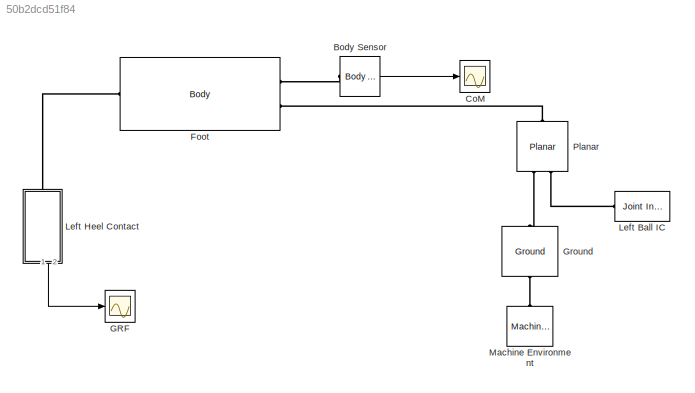
MODEL slx_50b2dcd51f84
KIND model
BLOCK [Reference] Body Sensor  REF=mblibv1/Sensors & 
Actuators/Body Sensor
  Acceleration = off
  AccelerationUnits = m/s^2
  ActiveIO = on
  Angle = on
  AngleUnits = deg
  ArcAcceleration = off
  ArcAccelerationUnits = deg/s^2
  ArcVelocity = off
  ArcVelocityUnits = deg/s
  ClassName = BodySensor
  CoordPosition = on
  CoordPositionUnits = m
  DialogClass = MechanicalSensorBlock
  Muxed = on
  OutputVector = [1]
  PhysicalDomain = Mechanical
  PortType = blob
  Ports = [0, 1, 0, 0, 0, 1]
  Pose = off
  Quaternion = on
  QuaternionDDT = off
  QuaternionDT = off
  QuaternionUnits = off
  ReferenceFrame = Absolute (World)
  SourceBlock = mblibv1/Sensors & \nActuators/Body Sensor
  SourceType = Body Sensor
  UpdateFromCAD = off
  Velocity = off
  VelocityUnits = m/s
  Width = 3
BLOCK [Scope] CoM
  Floating = off
  NumInputPorts = 1
  Ports = [1]
  SaveName = ScopeData1
  ShowLegends = off
BLOCK [Reference] Foot  REF=mblibv1/Bodies/Body
  AttachedToCS = CG
  BodyColor = [1 0 0]
  BodyColorSelMode = MACHINE_DEFAULT
  CG = Left$CG$[0 0 0]$CS1$CS1$m$[0 0 0]$Euler X-Y-Z$deg$WORLD$true$none
  CGPos = [0 0 0]
  CGRot = [0 0 0]
  CS0Pos = []
  CS0Rot = []
  CS10Pos = []
  CS10Rot = []
  CS11Pos = []
  CS11Rot = []
  CS12Pos = []
  CS12Rot = []
  CS13Pos = []
  CS13Rot = []
  CS14Pos = []
  CS14Rot = []
  CS15Pos = []
  CS15Rot = []
  CS16Pos = []
  CS16Rot = []
  CS17Pos = []
  CS17Rot = []
  CS18Pos = []
  CS18Rot = []
  CS19Pos = []
  CS19Rot = []
  CS1Pos = [0 0 0]
  CS1Rot = [0 0 0]
  CS20Pos = []
  CS20Rot = []
  CS2Pos = [0 0 0]
  CS2Rot = [0 0 0]
  CS3Pos = []
  CS3Rot = []
  CS4Pos = []
  CS4Rot = []
  CS5Pos = []
  CS5Rot = []
  CS6Pos = []
  CS6Rot = []
  CS7Pos = []
  CS7Rot = []
  CS8Pos = []
  CS8Rot = []
  CS9Pos = []
  CS9Rot = []
  ClassName = Body
  Density = 1
  DensityUnits = kg/m^3
  DensityUse = false
  DialogClass = MechanicalBodyBlock
  GraphicsMode = MACHINE_DEFAULT
  Inertia = [0 0 0; 0 0 0; 0 0 1]
  InertiaUnits = kg*m^2
  LConnTagsString = CG|CS1
  Mass = 1
  MassUnits = kg
  Ports = [0, 0, 0, 0, 0, 2, 1]
  RConnTagsString = CS2
  Shape = Cylinder
  ShapeDims = [1 1]
  ShapeUnits = m
  ShapeUse = false
  SourceBlock = mblibv1/Bodies/Body
  SourceType = Body
  UpdateFromCAD = off
  WorkingFrames = Left$CS1$[0 0 0]$ADJOINING$ADJOINING$m$[0 0 0]$Euler X-Y-Z$deg$WORLD$true$none#Right$CS2$[0 0 0]$CS1$CS1$m$[0 0 0]$Euler X-Y-Z$deg$WORLD$true$none
BLOCK [Scope] GRF
  Floating = off
  NumInputPorts = 1
  Ports = [1]
  ShowLegends = off
  ZoomMode = yonly
BLOCK [Reference] Ground  REF=mblibv1/Bodies/Ground
  ClassName = Ground
  CoordPosition = [0 0 0]
  CoordPositionUnits = m
  DialogClass = GroundBlock
  LeftPortType = env
  MachineId = [1 0]
  ParameterChecksum = [171950116, 4110428380, 191382114, 3598789503]
  PhysicalDomain = Mechanical
  Ports = [0, 0, 0, 0, 0, 1, 1]
  RightPortType = workingframe
  ShowEnvPort = on
  SourceBlock = mblibv1/Bodies/Ground
  SourceType = Ground
  StateVectorMgrId = 0
  TopologyChecksum = [3411928972, 2060642309, 880269519, 1718383124]
  UpdateFromCAD = off
  UserDataPersistent = on
BLOCK [Reference] Left Ball IC  REF=mblibv1/Sensors & 
Actuators/Joint Initial Condition
  ClassName = InitialCondition
  DialogClass = InitialConditionBlock
  InitialConditions = P1$true$0$m$rad$1$m/s$rad/s#P2$true$1$m$rad$0$m/s$rad/s#P3$false$0$m$rad$0$m/s$rad/s#R1$false$0$m$rad$0$m/s$rad/s#R2$false$0$m$rad$0$m/s$rad/s#R3$false$0$m$rad$0$m/s$rad/s#S$false$0$m$rad$0$m/s$rad/s
  LeftPortType = blob
  P1PIC = 0
  P1VIC = 1
  P2PIC = 1
  P2VIC = 0
  P3PIC = 0
  P3VIC = 0
  PhysicalDomain = Mechanical
  Ports = [0, 0, 0, 0, 0, 0, 1]
  R1PIC = 0
  R1VIC = 0
  R2PIC = 0
  R2VIC = 0
  R3PIC = 0
  R3VIC = 0
  RightPortType = blob
  SPIC = 0
  SVIC = 0
  SourceBlock = mblibv1/Sensors & \nActuators/Joint Initial Condition
  SourceType = Joint Initial Condition
  UpdateFromCAD = off
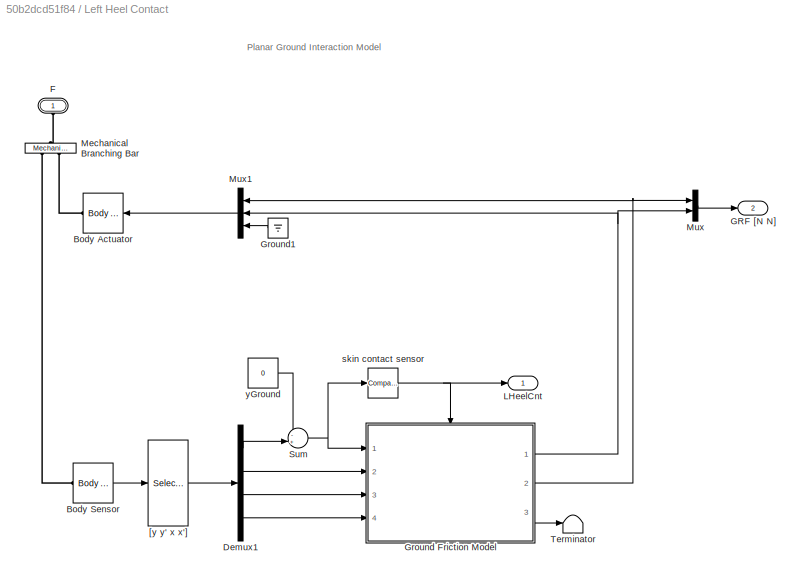
BLOCK [SubSystem] Left Heel Contact
  Ports = [0, 2, 0, 0, 0, 1]
  RequestExecContextInheritance = off
BLOCK [Reference] Left Heel Contact/Body Actuator  REF=mblibv1/Sensors & 
Actuators/Body Actuator
  AccelerationUnits = m/s^2
  ActiveIO = on
  ActuationStyle = Force
  Angle = off
  AngleUnits = deg
  ArcAccelerationUnits = deg/s^2
  ArcVelocityUnits = deg/s
  ClassName = BodyActuatorForceTorque
  CoordPosition = on
  CoordPositionUnits = m
  DialogClass = MechanicalActuatorBlock
  Force = on
  ForceUnits = N
  PhysicalDomain = Mechanical
  PortType = blob
  Ports = [1, 0, 0, 0, 0, 0, 1]
  ReferenceFrame = Absolute (World)
  SourceBlock = mblibv1/Sensors & \nActuators/Body Actuator
  SourceType = Body Actuator
  Torque = off
  TorqueUnits = N-m
  UpdateFromCAD = off
  VelocityUnits = m/s
  Width = 3
BLOCK [Reference] Left Heel Contact/Body Sensor  REF=mblibv1/Sensors & 
Actuators/Body Sensor
  Acceleration = off
  AccelerationUnits = m/s^2
  ActiveIO = on
  Angle = on
  AngleUnits = deg
  ArcAcceleration = off
  ArcAccelerationUnits = deg/s^2
  ArcVelocity = off
  ArcVelocityUnits = deg/s
  ClassName = BodySensor
  CoordPosition = on
  CoordPositionUnits = m
  DialogClass = MechanicalSensorBlock
  Muxed = on
  OutputVector = [ 3 3 ]
  PhysicalDomain = Mechanical
  PortType = blob
  Ports = [0, 1, 0, 0, 0, 1]
  Pose = off
  Quaternion = on
  QuaternionDDT = off
  QuaternionDT = off
  QuaternionUnits = off
  ReferenceFrame = Absolute (World)
  SourceBlock = mblibv1/Sensors & \nActuators/Body Sensor
  SourceType = Body Sensor
  UpdateFromCAD = off
  Velocity = on
  VelocityUnits = m/s
  Width = 6
BLOCK [Demux] Left Heel Contact/Demux1
  DisplayOption = bar
  Ports = [1, 4]
BLOCK [PMIOPort] Left Heel Contact/F
  Port = 1
  Side = Left
BLOCK [Outport] Left Heel Contact/GRF [N N]
  IconDisplay = Port number
  Port = 2
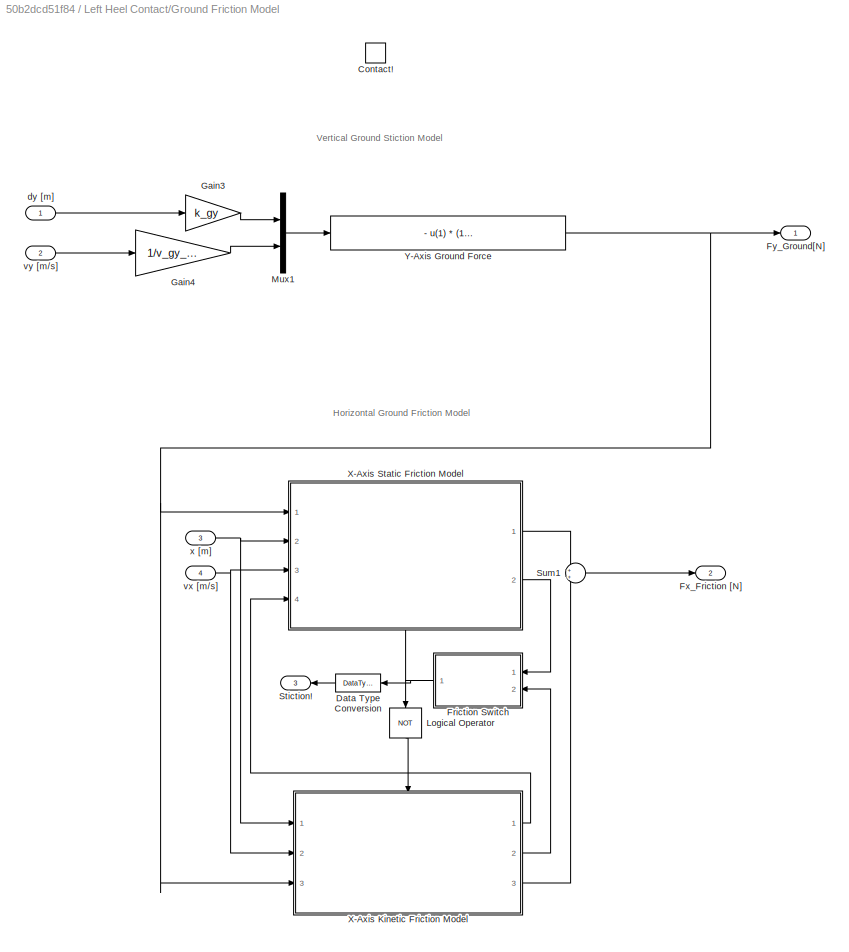
BLOCK [SubSystem] Left Heel Contact/Ground Friction Model
  Ports = [4, 3, 1]
  RequestExecContextInheritance = off
BLOCK [EnablePort] Left Heel Contact/Ground Friction Model/Contact!
  Ports = []
  StatesWhenEnabling = reset
BLOCK [DataTypeConversion] Left Heel Contact/Ground Friction Model/Data Type Conversion
  OutDataTypeStr = double
  RndMeth = Floor
  SaturateOnIntegerOverflow = off
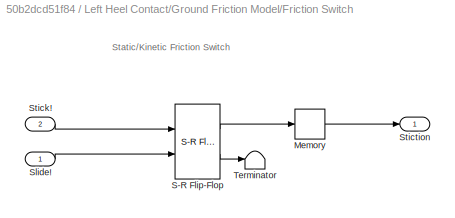
BLOCK [SubSystem] Left Heel Contact/Ground Friction Model/Friction Switch
  Ports = [2, 1]
  RequestExecContextInheritance = off
BLOCK [Memory] Left Heel Contact/Ground Friction Model/Friction Switch/Memory
BLOCK [Reference] Left Heel Contact/Ground Friction Model/Friction Switch/S-R Flip-Flop  REF=simulink_extras/Flip Flops/S-R
Flip-Flop
  Ports = [2, 2]
  SourceBlock = simulink_extras/Flip Flops/S-R\nFlip-Flop
  SourceType = SRFlipFlop
  initial_condition = 1
BLOCK [Inport] Left Heel Contact/Ground Friction Model/Friction Switch/Slide!
  IconDisplay = Port number
BLOCK [Inport] Left Heel Contact/Ground Friction Model/Friction Switch/Stick!
  IconDisplay = Port number
  Port = 2
BLOCK [Outport] Left Heel Contact/Ground Friction Model/Friction Switch/Stiction
  IconDisplay = Port number
BLOCK [Terminator] Left Heel Contact/Ground Friction Model/Friction Switch/Terminator
BLOCK [Outport] Left Heel Contact/Ground Friction Model/Fx_Friction [N]
  AttributesFormatString = initial = '%<InitialOutput>'\nwhen\ndisabled\n'%<OutputWhenDisabled>'
  IconDisplay = Port number
  InitialOutput = 0
  OutputWhenDisabled = reset
  Port = 2
BLOCK [Outport] Left Heel Contact/Ground Friction Model/Fy_Ground[N]
  AttributesFormatString = initial = '%<InitialOutput>'\nwhen disabled = '%<OutputWhenDisabled>'
  IconDisplay = Port number
  InitialOutput = 0
  OutputWhenDisabled = reset
BLOCK [Gain] Left Heel Contact/Ground Friction Model/Gain3
  Gain = k_gy
  OutDataTypeStr = Inherit: Inherit via internal rule
  ParamDataTypeStr = Inherit: Inherit via internal rule
  SaturateOnIntegerOverflow = off
BLOCK [Gain] Left Heel Contact/Ground Friction Model/Gain4
  Gain = 1/v_gy_max
  OutDataTypeStr = Inherit: Inherit via internal rule
  ParamDataTypeStr = Inherit: Inherit via internal rule
  SaturateOnIntegerOverflow = off
BLOCK [Logic] Left Heel Contact/Ground Friction Model/Logical Operator
  AllPortsSameDT = off
  Operator = NOT
  OutDataTypeStr = boolean
  Ports = [1, 1]
BLOCK [Mux] Left Heel Contact/Ground Friction Model/Mux1
  DisplayOption = bar
  Inputs = 2
  Ports = [2, 1]
BLOCK [Outport] Left Heel Contact/Ground Friction Model/Stiction!
  AttributesFormatString = initial = '%<InitialOutput>'\nwhen\ndisabled\n'%<OutputWhenDisabled>'
  IconDisplay = Port number
  InitialOutput = 0
  OutputWhenDisabled = reset
  Port = 3
BLOCK [Sum] Left Heel Contact/Ground Friction Model/Sum1
  IconShape = round
  InputSameDT = off
  OutDataTypeStr = Inherit: Inherit via internal rule
  Ports = [2, 1]
  SaturateOnIntegerOverflow = off
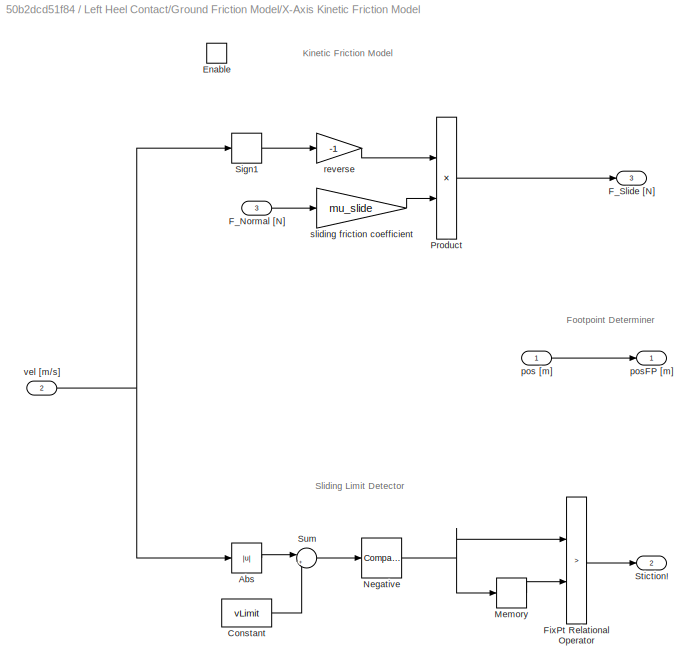
BLOCK [SubSystem] Left Heel Contact/Ground Friction Model/X-Axis Kinetic Friction Model
  Ports = [3, 3, 1]
  RequestExecContextInheritance = off
BLOCK [Abs] Left Heel Contact/Ground Friction Model/X-Axis Kinetic Friction Model/Abs
  SaturateOnIntegerOverflow = off
BLOCK [Constant] Left Heel Contact/Ground Friction Model/X-Axis Kinetic Friction Model/Constant
  Value = vLimit
BLOCK [EnablePort] Left Heel Contact/Ground Friction Model/X-Axis Kinetic Friction Model/Enable
  Ports = []
  StatesWhenEnabling = reset
  ZeroCross = off
BLOCK [Inport] Left Heel Contact/Ground Friction Model/X-Axis Kinetic Friction Model/F_Normal [N]
  IconDisplay = Port number
  Port = 3
BLOCK [Outport] Left Heel Contact/Ground Friction Model/X-Axis Kinetic Friction Model/F_Slide [N]
  AttributesFormatString = initial = '%<InitialOutput>'\nwhen disabled = '%<OutputWhenDisabled>'
  IconDisplay = Port number
  InitialOutput = 0
  OutputWhenDisabled = reset
  Port = 3
BLOCK [RelationalOperator] Left Heel Contact/Ground Friction Model/X-Axis Kinetic Friction Model/FixPt Relational Operator
  InputSameDT = off
  Operator = >
  OutDataTypeStr = boolean
  Ports = [2, 1]
  ZeroCross = off
BLOCK [Memory] Left Heel Contact/Ground Friction Model/X-Axis Kinetic Friction Model/Memory
BLOCK [Reference] Left Heel Contact/Ground Friction Model/X-Axis Kinetic Friction Model/Negative  REF=simulink/Logic and Bit
Operations/Compare
To Zero
  OutDataTypeStr = boolean
  Ports = [1, 1]
  SourceBlock = simulink/Logic and Bit\nOperations/Compare\nTo Zero
  SourceType = Compare To Zero
  ZeroCross = on
  relop = <
BLOCK [Product] Left Heel Contact/Ground Friction Model/X-Axis Kinetic Friction Model/Product
  InputSameDT = off
  OutDataTypeStr = Inherit: Inherit via internal rule
  Ports = [2, 1]
  SaturateOnIntegerOverflow = off
BLOCK [Signum] Left Heel Contact/Ground Friction Model/X-Axis Kinetic Friction Model/Sign1
BLOCK [Outport] Left Heel Contact/Ground Friction Model/X-Axis Kinetic Friction Model/Stiction!
  AttributesFormatString = initial = '%<InitialOutput>'\nwhen disabled = '%<OutputWhenDisabled>'
  IconDisplay = Port number
  InitialOutput = 0
  OutputWhenDisabled = reset
  Port = 2
BLOCK [Sum] Left Heel Contact/Ground Friction Model/X-Axis Kinetic Friction Model/Sum
  IconShape = round
  InputSameDT = off
  Inputs = |+-
  OutDataTypeStr = Inherit: Inherit via internal rule
  Ports = [2, 1]
  SaturateOnIntegerOverflow = off
BLOCK [Inport] Left Heel Contact/Ground Friction Model/X-Axis Kinetic Friction Model/pos [m]
  IconDisplay = Port number
BLOCK [Outport] Left Heel Contact/Ground Friction Model/X-Axis Kinetic Friction Model/posFP [m]
  AttributesFormatString = initial = '%<InitialOutput>'\nwhen disabled = '%<OutputWhenDisabled>'
  IconDisplay = Port number
  InitialOutput = 0
BLOCK [Gain] Left Heel Contact/Ground Friction Model/X-Axis Kinetic Friction Model/reverse
  Gain = -1
  OutDataTypeStr = Inherit: Inherit via internal rule
  ParamDataTypeStr = Inherit: Inherit via internal rule
  SaturateOnIntegerOverflow = off
BLOCK [Gain] Left Heel Contact/Ground Friction Model/X-Axis Kinetic Friction Model/sliding friction coefficient
  Gain = mu_slide
  OutDataTypeStr = Inherit: Inherit via internal rule
  ParamDataTypeStr = Inherit: Inherit via internal rule
  SaturateOnIntegerOverflow = off
BLOCK [Inport] Left Heel Contact/Ground Friction Model/X-Axis Kinetic Friction Model/vel [m//s]
  IconDisplay = Port number
  Port = 2
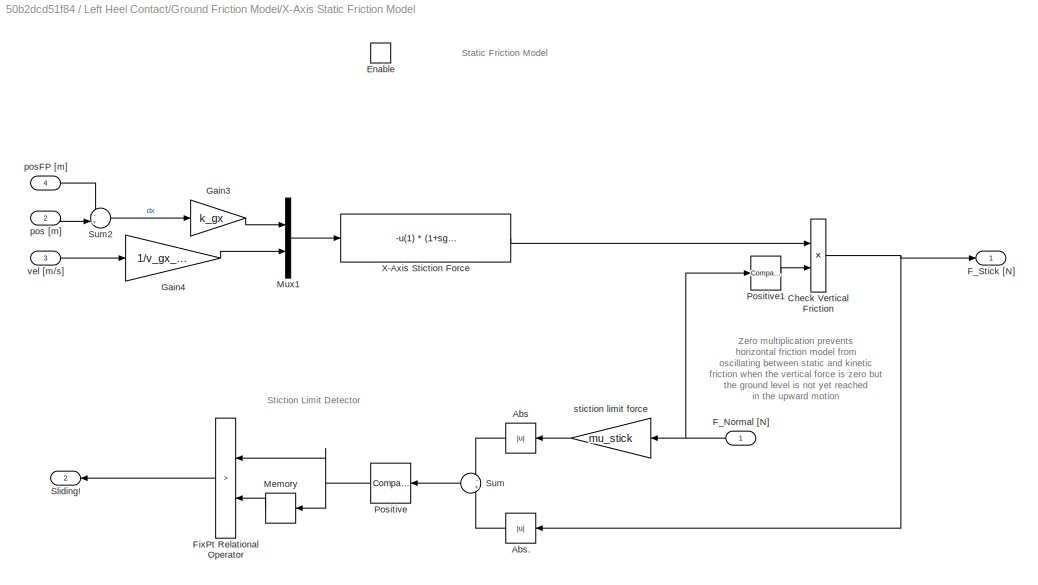
BLOCK [SubSystem] Left Heel Contact/Ground Friction Model/X-Axis Static Friction Model
  Ports = [4, 2, 1]
  RequestExecContextInheritance = off
BLOCK [Abs] Left Heel Contact/Ground Friction Model/X-Axis Static Friction Model/Abs
  SaturateOnIntegerOverflow = off
BLOCK [Abs] Left Heel Contact/Ground Friction Model/X-Axis Static Friction Model/Abs.
  SaturateOnIntegerOverflow = off
BLOCK [Product] Left Heel Contact/Ground Friction Model/X-Axis Static Friction Model/Check Vertical Friction
  InputSameDT = off
  OutDataTypeStr = Inherit: Inherit via internal rule
  Ports = [2, 1]
  SaturateOnIntegerOverflow = off
BLOCK [EnablePort] Left Heel Contact/Ground Friction Model/X-Axis Static Friction Model/Enable
  Ports = []
  StatesWhenEnabling = reset
  ZeroCross = off
BLOCK [Inport] Left Heel Contact/Ground Friction Model/X-Axis Static Friction Model/F_Normal [N]
  IconDisplay = Port number
BLOCK [Outport] Left Heel Contact/Ground Friction Model/X-Axis Static Friction Model/F_Stick [N]
  AttributesFormatString = when disabled: %<OutputWhenDisabled>\ninitial: %<InitialOutput>
  IconDisplay = Port number
  InitialOutput = 0
  OutputWhenDisabled = reset
BLOCK [RelationalOperator] Left Heel Contact/Ground Friction Model/X-Axis Static Friction Model/FixPt Relational Operator
  InputSameDT = off
  Operator = >
  OutDataTypeStr = boolean
  Ports = [2, 1]
  ZeroCross = off
BLOCK [Gain] Left Heel Contact/Ground Friction Model/X-Axis Static Friction Model/Gain3
  Gain = k_gx
  OutDataTypeStr = Inherit: Inherit via internal rule
  ParamDataTypeStr = Inherit: Inherit via internal rule
  SaturateOnIntegerOverflow = off
BLOCK [Gain] Left Heel Contact/Ground Friction Model/X-Axis Static Friction Model/Gain4
  Gain = 1/v_gx_max
  OutDataTypeStr = Inherit: Inherit via internal rule
  ParamDataTypeStr = Inherit: Inherit via internal rule
  SaturateOnIntegerOverflow = off
BLOCK [Memory] Left Heel Contact/Ground Friction Model/X-Axis Static Friction Model/Memory
BLOCK [Mux] Left Heel Contact/Ground Friction Model/X-Axis Static Friction Model/Mux1
  DisplayOption = bar
  Inputs = 2
  Ports = [2, 1]
BLOCK [Reference] Left Heel Contact/Ground Friction Model/X-Axis Static Friction Model/Positive  REF=simulink/Logic and Bit
Operations/Compare
To Zero
  OutDataTypeStr = boolean
  Ports = [1, 1]
  SourceBlock = simulink/Logic and Bit\nOperations/Compare\nTo Zero
  SourceType = Compare To Zero
  ZeroCross = on
  relop = >
BLOCK [Reference] Left Heel Contact/Ground Friction Model/X-Axis Static Friction Model/Positive1  REF=simulink/Logic and Bit
Operations/Compare
To Zero
  OutDataTypeStr = boolean
  Ports = [1, 1]
  SourceBlock = simulink/Logic and Bit\nOperations/Compare\nTo Zero
  SourceType = Compare To Zero
  ZeroCross = on
  relop = >
BLOCK [Outport] Left Heel Contact/Ground Friction Model/X-Axis Static Friction Model/Sliding!
  AttributesFormatString = when disabled: %<OutputWhenDisabled>\ninitial: %<InitialOutput>
  IconDisplay = Port number
  InitialOutput = 0
  OutputWhenDisabled = reset
  Port = 2
BLOCK [Sum] Left Heel Contact/Ground Friction Model/X-Axis Static Friction Model/Sum
  IconShape = round
  InputSameDT = off
  Inputs = -+
  OutDataTypeStr = Inherit: Inherit via internal rule
  Ports = [2, 1]
  SaturateOnIntegerOverflow = off
BLOCK [Sum] Left Heel Contact/Ground Friction Model/X-Axis Static Friction Model/Sum2
  IconShape = round
  InputSameDT = off
  Inputs = -+|
  OutDataTypeStr = Inherit: Inherit via internal rule
  Ports = [2, 1]
  SaturateOnIntegerOverflow = off
BLOCK [Fcn] Left Heel Contact/Ground Friction Model/X-Axis Static Friction Model/X-Axis Stiction Force
  Expr = -u(1) * (1+sgn(u(1))*u(2))
BLOCK [Inport] Left Heel Contact/Ground Friction Model/X-Axis Static Friction Model/pos [m]
  IconDisplay = Port number
  Port = 2
BLOCK [Inport] Left Heel Contact/Ground Friction Model/X-Axis Static Friction Model/posFP [m]
  IconDisplay = Port number
  Port = 4
BLOCK [Gain] Left Heel Contact/Ground Friction Model/X-Axis Static Friction Model/stiction limit force
  Gain = mu_stick
  OutDataTypeStr = Inherit: Inherit via internal rule
  ParamDataTypeStr = Inherit: Inherit via internal rule
  SaturateOnIntegerOverflow = off
BLOCK [Inport] Left Heel Contact/Ground Friction Model/X-Axis Static Friction Model/vel [m//s]
  IconDisplay = Port number
  Port = 3
BLOCK [Fcn] Left Heel Contact/Ground Friction Model/Y-Axis Ground Force
  Expr = - u(1)  *  (1-u(2)) * (u(2)<1)
BLOCK [Inport] Left Heel Contact/Ground Friction Model/dy [m]
  IconDisplay = Port number
BLOCK [Inport] Left Heel Contact/Ground Friction Model/vx [m//s]
  IconDisplay = Port number
  Port = 4
BLOCK [Inport] Left Heel Contact/Ground Friction Model/vy [m//s]
  IconDisplay = Port number
  Port = 2
BLOCK [Inport] Left Heel Contact/Ground Friction Model/x [m]
  IconDisplay = Port number
  Port = 3
BLOCK [Ground] Left Heel Contact/Ground1
BLOCK [Outport] Left Heel Contact/LHeelCnt
  IconDisplay = Port number
BLOCK [Reference] Left Heel Contact/Mechanical Branching Bar  REF=mblibv1/Utilities/Mechanical
Branching
Bar
  ClassName = BranchingBar
  DialogClass = MechanicalBranchingBarBlock
  LConnTagsString = _newl0
  NumSAPorts = 2
  Ports = [0, 0, 0, 0, 0, 1, 2]
  RConnTagsString = SA0|SA1
  SourceBlock = mblibv1/Utilities/Mechanical\nBranching\nBar
  SourceType = Mechanical Branching Bar
  UpdateFromCAD = off
BLOCK [Mux] Left Heel Contact/Mux
  DisplayOption = bar
  Inputs = 2
  Ports = [2, 1]
BLOCK [Mux] Left Heel Contact/Mux1
  DisplayOption = bar
  Inputs = 3
  Ports = [3, 1]
BLOCK [Sum] Left Heel Contact/Sum
  IconShape = round
  InputSameDT = off
  Inputs = -+|
  OutDataTypeStr = Inherit: Inherit via internal rule
  Ports = [2, 1]
  SaturateOnIntegerOverflow = off
BLOCK [Terminator] Left Heel Contact/Terminator
BLOCK [Selector] Left Heel Contact/[y y' x x']
  Indices = [2 5 1 4]
  InputPortWidth = 6
  Ports = [1, 1]
BLOCK [Reference] Left Heel Contact/skin contact sensor  REF=simulink/Logic and Bit
Operations/Compare
To Zero
  OutDataTypeStr = boolean
  Ports = [1, 1]
  SourceBlock = simulink/Logic and Bit\nOperations/Compare\nTo Zero
  SourceType = Compare To Zero
  ZeroCross = on
  relop = <=
BLOCK [Constant] Left Heel Contact/yGround
  Value = 0
BLOCK [Reference] Machine Environment  REF=mblibv1/Bodies/Machine
Environment
  AnalysisType = Forward dynamics
  AngularAssemblyTolerance = 1e-3
  AngularAssemblyToleranceUnits = rad
  BodyColorSelMode = Use model default
  BodyVisualizationType = Use model default body geometries
  ClassName = Environment
  ConstraintAbsTolerance = 1e-3
  ConstraintRelTolerance = 1e-3
  ConstraintSolverType = Tolerancing
  DefaultBodyColor = [1 0 0]
  DialogTemplateClass = MECH.MachineEnvironment
  Dimensionality = 2D Only
  Gravity = [0 -9.81 0]
  GravityAsSignal = off
  GravityUnits = m/s^2
  LinearAssemblyTolerance = 1e-3
  LinearAssemblyToleranceUnits = m
  PerturbationSize = 1e-3
  PhysicalDomain = Mechanical
  PortType = env
  Ports = [0, 0, 0, 0, 0, 0, 1]
  RedundancyAnalysisTolerance = 1e-14
  RedundancyAnalysisToleranceType = Automatically select tolerance
  SourceBlock = mblibv1/Bodies/Machine\nEnvironment
  SourceType = Machine Environment
  StatePerturbationType = Fixed
  SyncWhenCopied = off
  Tag = Factory ground
  UseRobustSingularityHandling = off
  VisualizeMachine = on
BLOCK [Reference] Planar  REF=mblibv1/Joints/Planar
  ClassName = PlanarJoint
  CutJoint = off
  DialogClass = JointBlock
  LConnTagsString = __newl0|SA1
  MarkAsCut = off
  NumSAPorts = 1
  P1Axis = [1 0 0]
  P2Axis = [0 1 0]
  Ports = [0, 0, 0, 0, 0, 2, 1]
  PrimitiveProps = P1$WORLD$[1 0 0]$prismatic#P2$WORLD$[0 1 0]$prismatic#R1$WORLD$[0 0 1]$revolute
  Primitives = prismatic_prismatic_revolute
  R1Axis = [0 0 1]
  RConnTagsString = __newr0
  SourceBlock = mblibv1/Joints/Planar
  SourceType = Planar
  UpdateFromCAD = off
ANNOTATION Left Heel Contact: Planar Ground Interaction Model
ANNOTATION Left Heel Contact/Ground Friction Model: Horizontal Ground Friction Model
ANNOTATION Left Heel Contact/Ground Friction Model: Vertical Ground Stiction Model
ANNOTATION Left Heel Contact/Ground Friction Model/Friction Switch: Static/Kinetic Friction Switch
ANNOTATION Left Heel Contact/Ground Friction Model/X-Axis Kinetic Friction Model: Footpoint Determiner
ANNOTATION Left Heel Contact/Ground Friction Model/X-Axis Kinetic Friction Model: Kinetic Friction Model
ANNOTATION Left Heel Contact/Ground Friction Model/X-Axis Kinetic Friction Model: Sliding Limit Detector
ANNOTATION Left Heel Contact/Ground Friction Model/X-Axis Static Friction Model: Static Friction Model
ANNOTATION Left Heel Contact/Ground Friction Model/X-Axis Static Friction Model: Stiction Limit Detector
ANNOTATION Left Heel Contact/Ground Friction Model/X-Axis Static Friction Model: Zero multiplication prevents horizontal friction model from oscillating between static and kinetic friction when the vertical force is zero but the ground level is not yet reached in the upward motion
LINE Body Sensor:1 -> CoM:1
LINE Left Heel Contact/Body Sensor:1 -> Left Heel Contact/[y y' x x']:1
LINE Left Heel Contact/Demux1:1 -> Left Heel Contact/Sum:2
LINE Left Heel Contact/Demux1:2 -> Left Heel Contact/Ground Friction Model:2
LINE Left Heel Contact/Demux1:3 -> Left Heel Contact/Ground Friction Model:3
LINE Left Heel Contact/Demux1:4 -> Left Heel Contact/Ground Friction Model:4
LINE Left Heel Contact/Ground Friction Model/Data Type Conversion:1 -> Left Heel Contact/Ground Friction Model/Stiction!:1
LINE Left Heel Contact/Ground Friction Model/Friction Switch/Memory:1 -> Left Heel Contact/Ground Friction Model/Friction Switch/Stiction:1
LINE Left Heel Contact/Ground Friction Model/Friction Switch/S-R Flip-Flop:1 -> Left Heel Contact/Ground Friction Model/Friction Switch/Memory:1
LINE Left Heel Contact/Ground Friction Model/Friction Switch/S-R Flip-Flop:2 -> Left Heel Contact/Ground Friction Model/Friction Switch/Terminator:1
LINE Left Heel Contact/Ground Friction Model/Friction Switch/Slide!:1 -> Left Heel Contact/Ground Friction Model/Friction Switch/S-R Flip-Flop:2
LINE Left Heel Contact/Ground Friction Model/Friction Switch/Stick!:1 -> Left Heel Contact/Ground Friction Model/Friction Switch/S-R Flip-Flop:1
NET Left Heel Contact/Ground Friction Model/Friction Switch:1 -> Left Heel Contact/Ground Friction Model/Data Type Conversion:1, Left Heel Contact/Ground Friction Model/Logical Operator:1, Left Heel Contact/Ground Friction Model/X-Axis Static Friction Model:enable
LINE Left Heel Contact/Ground Friction Model/Gain3:1 -> Left Heel Contact/Ground Friction Model/Mux1:1
LINE Left Heel Contact/Ground Friction Model/Gain4:1 -> Left Heel Contact/Ground Friction Model/Mux1:2
LINE Left Heel Contact/Ground Friction Model/Logical Operator:1 -> Left Heel Contact/Ground Friction Model/X-Axis Kinetic Friction Model:enable
LINE Left Heel Contact/Ground Friction Model/Mux1:1 -> Left Heel Contact/Ground Friction Model/Y-Axis Ground Force:1
LINE Left Heel Contact/Ground Friction Model/Sum1:1 -> Left Heel Contact/Ground Friction Model/Fx_Friction [N]:1
LINE Left Heel Contact/Ground Friction Model/X-Axis Kinetic Friction Model/Abs:1 -> Left Heel Contact/Ground Friction Model/X-Axis Kinetic Friction Model/Sum:1
LINE Left Heel Contact/Ground Friction Model/X-Axis Kinetic Friction Model/Constant:1 -> Left Heel Contact/Ground Friction Model/X-Axis Kinetic Friction Model/Sum:2
LINE Left Heel Contact/Ground Friction Model/X-Axis Kinetic Friction Model/F_Normal [N]:1 -> Left Heel Contact/Ground Friction Model/X-Axis Kinetic Friction Model/sliding friction coefficient:1
LINE Left Heel Contact/Ground Friction Model/X-Axis Kinetic Friction Model/FixPt Relational Operator:1 -> Left Heel Contact/Ground Friction Model/X-Axis Kinetic Friction Model/Stiction!:1
LINE Left Heel Contact/Ground Friction Model/X-Axis Kinetic Friction Model/Memory:1 -> Left Heel Contact/Ground Friction Model/X-Axis Kinetic Friction Model/FixPt Relational Operator:2
NET Left Heel Contact/Ground Friction Model/X-Axis Kinetic Friction Model/Negative:1 -> Left Heel Contact/Ground Friction Model/X-Axis Kinetic Friction Model/FixPt Relational Operator:1, Left Heel Contact/Ground Friction Model/X-Axis Kinetic Friction Model/Memory:1
LINE Left Heel Contact/Ground Friction Model/X-Axis Kinetic Friction Model/Product:1 -> Left Heel Contact/Ground Friction Model/X-Axis Kinetic Friction Model/F_Slide [N]:1
LINE Left Heel Contact/Ground Friction Model/X-Axis Kinetic Friction Model/Sign1:1 -> Left Heel Contact/Ground Friction Model/X-Axis Kinetic Friction Model/reverse:1
LINE Left Heel Contact/Ground Friction Model/X-Axis Kinetic Friction Model/Sum:1 -> Left Heel Contact/Ground Friction Model/X-Axis Kinetic Friction Model/Negative:1
LINE Left Heel Contact/Ground Friction Model/X-Axis Kinetic Friction Model/pos [m]:1 -> Left Heel Contact/Ground Friction Model/X-Axis Kinetic Friction Model/posFP [m]:1
LINE Left Heel Contact/Ground Friction Model/X-Axis Kinetic Friction Model/reverse:1 -> Left Heel Contact/Ground Friction Model/X-Axis Kinetic Friction Model/Product:1
LINE Left Heel Contact/Ground Friction Model/X-Axis Kinetic Friction Model/sliding friction coefficient:1 -> Left Heel Contact/Ground Friction Model/X-Axis Kinetic Friction Model/Product:2
NET Left Heel Contact/Ground Friction Model/X-Axis Kinetic Friction Model/vel [m//s]:1 -> Left Heel Contact/Ground Friction Model/X-Axis Kinetic Friction Model/Abs:1, Left Heel Contact/Ground Friction Model/X-Axis Kinetic Friction Model/Sign1:1
LINE Left Heel Contact/Ground Friction Model/X-Axis Kinetic Friction Model:1 -> Left Heel Contact/Ground Friction Model/X-Axis Static Friction Model:4
LINE Left Heel Contact/Ground Friction Model/X-Axis Kinetic Friction Model:2 -> Left Heel Contact/Ground Friction Model/Friction Switch:2
LINE Left Heel Contact/Ground Friction Model/X-Axis Kinetic Friction Model:3 -> Left Heel Contact/Ground Friction Model/Sum1:2
LINE Left Heel Contact/Ground Friction Model/X-Axis Static Friction Model/Abs.:1 -> Left Heel Contact/Ground Friction Model/X-Axis Static Friction Model/Sum:2
LINE Left Heel Contact/Ground Friction Model/X-Axis Static Friction Model/Abs:1 -> Left Heel Contact/Ground Friction Model/X-Axis Static Friction Model/Sum:1
NET Left Heel Contact/Ground Friction Model/X-Axis Static Friction Model/Check Vertical Friction:1 -> Left Heel Contact/Ground Friction Model/X-Axis Static Friction Model/Abs.:1, Left Heel Contact/Ground Friction Model/X-Axis Static Friction Model/F_Stick [N]:1
NET Left Heel Contact/Ground Friction Model/X-Axis Static Friction Model/F_Normal [N]:1 -> Left Heel Contact/Ground Friction Model/X-Axis Static Friction Model/Positive1:1, Left Heel Contact/Ground Friction Model/X-Axis Static Friction Model/stiction limit force:1
LINE Left Heel Contact/Ground Friction Model/X-Axis Static Friction Model/FixPt Relational Operator:1 -> Left Heel Contact/Ground Friction Model/X-Axis Static Friction Model/Sliding!:1
LINE Left Heel Contact/Ground Friction Model/X-Axis Static Friction Model/Gain3:1 -> Left Heel Contact/Ground Friction Model/X-Axis Static Friction Model/Mux1:1
LINE Left Heel Contact/Ground Friction Model/X-Axis Static Friction Model/Gain4:1 -> Left Heel Contact/Ground Friction Model/X-Axis Static Friction Model/Mux1:2
LINE Left Heel Contact/Ground Friction Model/X-Axis Static Friction Model/Memory:1 -> Left Heel Contact/Ground Friction Model/X-Axis Static Friction Model/FixPt Relational Operator:2
LINE Left Heel Contact/Ground Friction Model/X-Axis Static Friction Model/Mux1:1 -> Left Heel Contact/Ground Friction Model/X-Axis Static Friction Model/X-Axis Stiction Force:1
LINE Left Heel Contact/Ground Friction Model/X-Axis Static Friction Model/Positive1:1 -> Left Heel Contact/Ground Friction Model/X-Axis Static Friction Model/Check Vertical Friction:2
NET Left Heel Contact/Ground Friction Model/X-Axis Static Friction Model/Positive:1 -> Left Heel Contact/Ground Friction Model/X-Axis Static Friction Model/FixPt Relational Operator:1, Left Heel Contact/Ground Friction Model/X-Axis Static Friction Model/Memory:1
LINE Left Heel Contact/Ground Friction Model/X-Axis Static Friction Model/Sum2:1 -> Left Heel Contact/Ground Friction Model/X-Axis Static Friction Model/Gain3:1
LINE Left Heel Contact/Ground Friction Model/X-Axis Static Friction Model/Sum:1 -> Left Heel Contact/Ground Friction Model/X-Axis Static Friction Model/Positive:1
LINE Left Heel Contact/Ground Friction Model/X-Axis Static Friction Model/X-Axis Stiction Force:1 -> Left Heel Contact/Ground Friction Model/X-Axis Static Friction Model/Check Vertical Friction:1
LINE Left Heel Contact/Ground Friction Model/X-Axis Static Friction Model/pos [m]:1 -> Left Heel Contact/Ground Friction Model/X-Axis Static Friction Model/Sum2:2
LINE Left Heel Contact/Ground Friction Model/X-Axis Static Friction Model/posFP [m]:1 -> Left Heel Contact/Ground Friction Model/X-Axis Static Friction Model/Sum2:1
LINE Left Heel Contact/Ground Friction Model/X-Axis Static Friction Model/stiction limit force:1 -> Left Heel Contact/Ground Friction Model/X-Axis Static Friction Model/Abs:1
LINE Left Heel Contact/Ground Friction Model/X-Axis Static Friction Model/vel [m//s]:1 -> Left Heel Contact/Ground Friction Model/X-Axis Static Friction Model/Gain4:1
LINE Left Heel Contact/Ground Friction Model/X-Axis Static Friction Model:1 -> Left Heel Contact/Ground Friction Model/Sum1:1
LINE Left Heel Contact/Ground Friction Model/X-Axis Static Friction Model:2 -> Left Heel Contact/Ground Friction Model/Friction Switch:1
NET Left Heel Contact/Ground Friction Model/Y-Axis Ground Force:1 -> Left Heel Contact/Ground Friction Model/Fy_Ground[N]:1, Left Heel Contact/Ground Friction Model/X-Axis Kinetic Friction Model:3, Left Heel Contact/Ground Friction Model/X-Axis Static Friction Model:1
LINE Left Heel Contact/Ground Friction Model/dy [m]:1 -> Left Heel Contact/Ground Friction Model/Gain3:1
NET Left Heel Contact/Ground Friction Model/vx [m//s]:1 -> Left Heel Contact/Ground Friction Model/X-Axis Kinetic Friction Model:2, Left Heel Contact/Ground Friction Model/X-Axis Static Friction Model:3
LINE Left Heel Contact/Ground Friction Model/vy [m//s]:1 -> Left Heel Contact/Ground Friction Model/Gain4:1
NET Left Heel Contact/Ground Friction Model/x [m]:1 -> Left Heel Contact/Ground Friction Model/X-Axis Kinetic Friction Model:1, Left Heel Contact/Ground Friction Model/X-Axis Static Friction Model:2
NET Left Heel Contact/Ground Friction Model:1 -> Left Heel Contact/Mux1:2, Left Heel Contact/Mux:2
NET Left Heel Contact/Ground Friction Model:2 -> Left Heel Contact/Mux1:1, Left Heel Contact/Mux:1
LINE Left Heel Contact/Ground Friction Model:3 -> Left Heel Contact/Terminator:1
LINE Left Heel Contact/Ground1:1 -> Left Heel Contact/Mux1:3
LINE Left Heel Contact/Mux1:1 -> Left Heel Contact/Body Actuator:1
LINE Left Heel Contact/Mux:1 -> Left Heel Contact/GRF [N N]:1
NET Left Heel Contact/Sum:1 -> Left Heel Contact/Ground Friction Model:1, Left Heel Contact/skin contact sensor:1
LINE Left Heel Contact/[y y' x x']:1 -> Left Heel Contact/Demux1:1
NET Left Heel Contact/skin contact sensor:1 -> Left Heel Contact/Ground Friction Model:enable, Left Heel Contact/LHeelCnt:1
LINE Left Heel Contact/yGround:1 -> Left Heel Contact/Sum:1
LINE Left Heel Contact:2 -> GRF:1
PLINE Body Sensor:LConn1 -- Foot:LConn1
PLINE Foot:LConn2 -- Planar:RConn1
PLINE Foot:RConn1 -- Left Heel Contact:LConn1
PLINE Ground:LConn1 -- Machine Environment:RConn1
PLINE Ground:RConn1 -- Planar:LConn1
PLINE Left Ball IC:RConn1 -- Planar:LConn2
PLINE Left Heel Contact/Body Actuator:RConn1 -- Left Heel Contact/Mechanical Branching Bar:RConn2
PLINE Left Heel Contact/Body Sensor:LConn1 -- Left Heel Contact/Mechanical Branching Bar:RConn1
PLINE Left Heel Contact/F:RConn1 -- Left Heel Contact/Mechanical Branching Bar:LConn1
note: NET lines group one-source signal fan-out (src -> all destinations, sorted); 1:1 wires keep LINE
